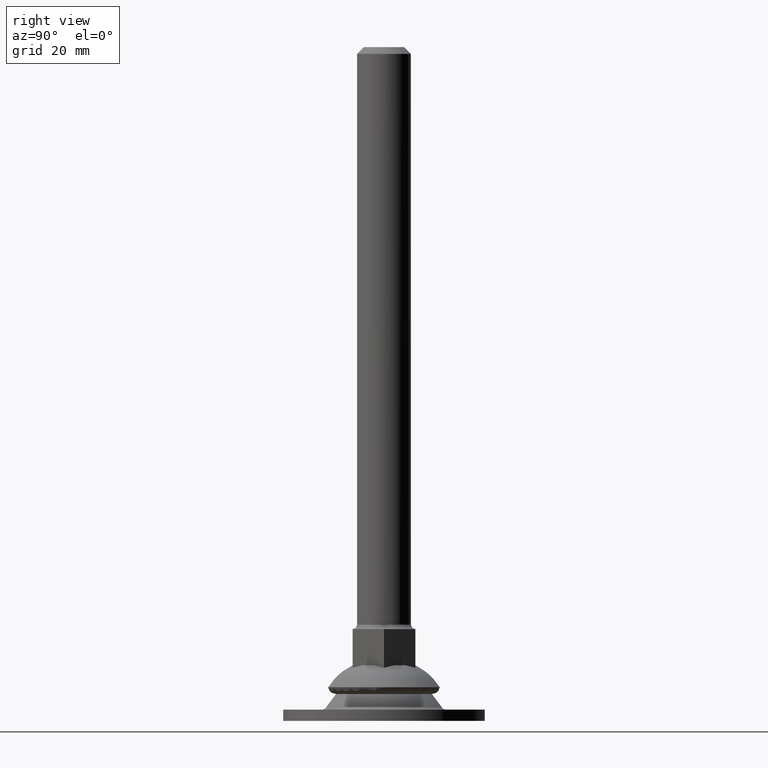
[diagram: clean part render]
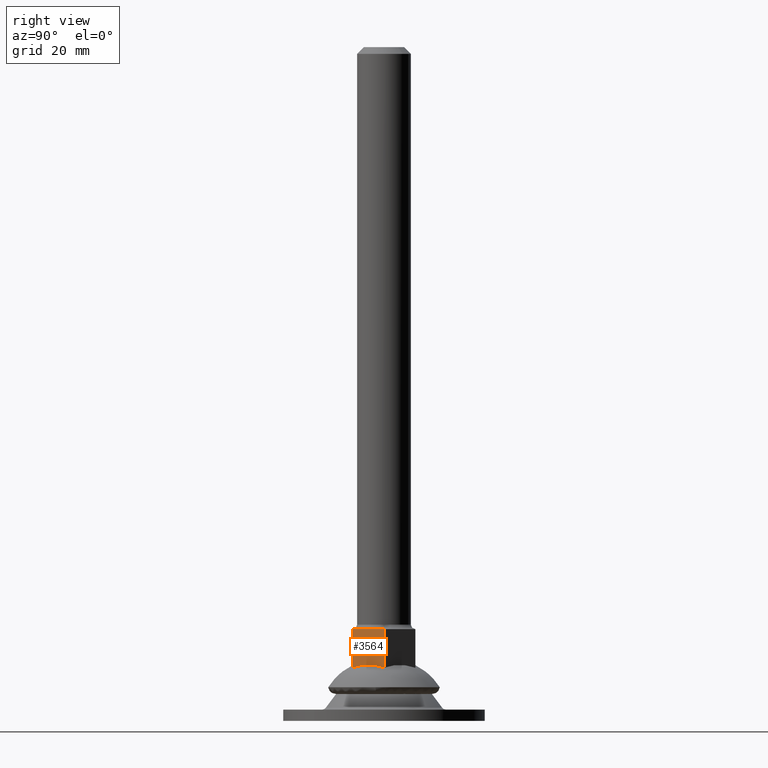
[diagram: same view with one face highlighted and labeled with its STEP entity id]
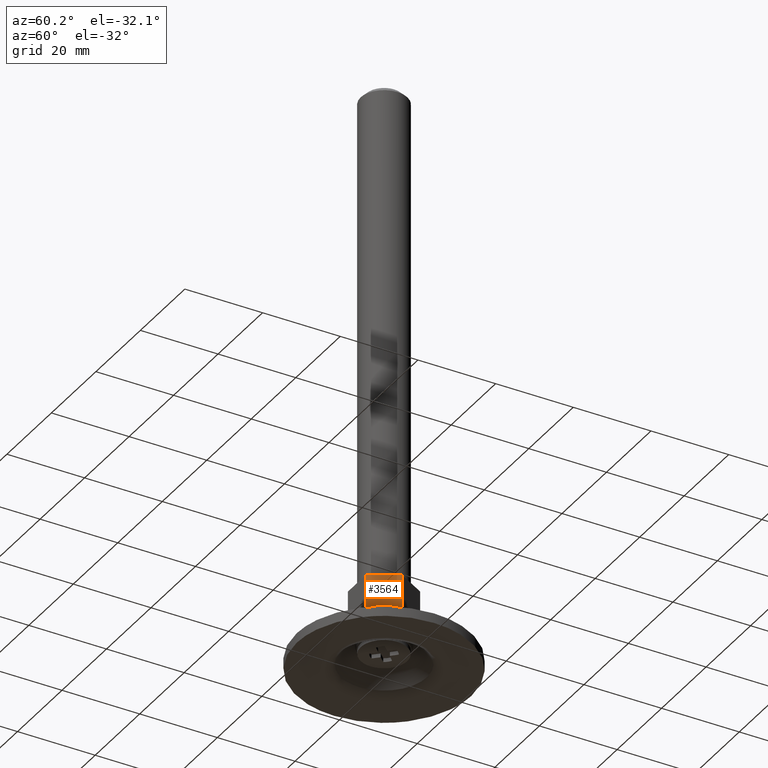
[diagram: same view with one face highlighted and labeled with its STEP entity id]
A machine part, right view. The second image highlights one B-rep face of the part: STEP entity #3564.
A second angle (auxiliary view) of the same face is appended — the face is thin or edge-on in the first view.
In plain terms, the highlighted face is a freeform B-spline surface patch.
Its self-contained STEP definition (entity closure, byte-faithful):
#3212=CARTESIAN_POINT('',(6.062177913245590,-3.500000150263090,20.500000000000000));
#3213=VERTEX_POINT('',#3212);
#3328=CARTESIAN_POINT('',(8.082904000000001,0.0,20.500000000000000));
#3329=VERTEX_POINT('',#3328);
#3337=CARTESIAN_POINT('',(8.082904000000001,0.0,20.500000000000000));
#3338=CARTESIAN_POINT('',(6.062177913245590,-3.500000150263090,20.500000000000000));
#3339=QUASI_UNIFORM_CURVE('',1,(#3337,#3338),.UNSPECIFIED.,.F.,.U.);
#3340=EDGE_CURVE('',#3329,#3213,#3339,.T.);
#3435=CARTESIAN_POINT('',(4.041452000000050,-7.0,20.500000000000000));
#3436=VERTEX_POINT('',#3435);
#3437=CARTESIAN_POINT('',(6.062177913245590,-3.500000150263090,20.500000000000000));
#3438=CARTESIAN_POINT('',(4.041452000000050,-7.0,20.500000000000000));
#3439=QUASI_UNIFORM_CURVE('',1,(#3437,#3438),.UNSPECIFIED.,.F.,.U.);
#3440=EDGE_CURVE('',#3213,#3436,#3439,.T.);
#3516=CARTESIAN_POINT('',(4.041452000000050,-7.0,11.867350484786179));
#3517=VERTEX_POINT('',#3516);
#3527=CARTESIAN_POINT('',(4.041452000000050,-7.0,11.867350484786179));
#3528=CARTESIAN_POINT('',(4.041452000000050,-7.0,20.500000000000000));
#3529=QUASI_UNIFORM_CURVE('',1,(#3527,#3528),.UNSPECIFIED.,.F.,.U.);
#3530=EDGE_CURVE('',#3517,#3436,#3529,.T.);
#3538=CARTESIAN_POINT('',(8.284774519566881,0.349649986432645,11.436149541296309));
#3539=CARTESIAN_POINT('',(3.839581372033022,-7.349650174187297,11.436149541296309));
#3540=CARTESIAN_POINT('',(8.284774519566881,0.349649986432645,20.931201063662002));
#3541=CARTESIAN_POINT('',(3.839581372033022,-7.349650174187297,20.931201063662002));
#3542=B_SPLINE_SURFACE_WITH_KNOTS('',1,1,((#3538,#3540),(#3539,#3541)),.UNSPECIFIED.,.F.,.F.,.U.,(2,2),(2,2),(0.0,8.890386104225406),(0.0,9.495051522365689),.UNSPECIFIED.);
#3543=CARTESIAN_POINT('',(8.082904000000001,4.336809E-016,11.867350373412600));
#3544=VERTEX_POINT('',#3543);
#3545=CARTESIAN_POINT('',(8.082904000000001,4.336809E-016,11.867350373412600));
#3546=CARTESIAN_POINT('',(7.695918158687956,-0.670279119777820,12.115820715223959));
#3547=CARTESIAN_POINT('',(6.877986629508403,-2.086978044881282,12.478747010405611));
#3548=CARTESIAN_POINT('',(5.503060618181916,-4.468419684986229,12.558909774698069));
#3549=CARTESIAN_POINT('',(4.550625719361336,-6.118085273429196,12.194437573459309));
#3550=CARTESIAN_POINT('',(4.041452000000050,-7.0,11.867350484786179));
#3551=B_SPLINE_CURVE_WITH_KNOTS('',3,(#3545,#3546,#3547,#3548,#3549,#3550),.UNSPECIFIED.,.F.,.U.,(4,1,1,4),(0.000000019349825,2.438636873985987,5.005612915558394,8.214342340113577),.UNSPECIFIED.);
#3552=EDGE_CURVE('',#3544,#3517,#3551,.T.);
#3553=ORIENTED_EDGE('',*,*,#3552,.F.);
#3554=CARTESIAN_POINT('',(8.082904000000001,4.336809E-016,11.867350373412600));
#3555=CARTESIAN_POINT('',(8.082904000000001,0.0,20.500000000000000));
#3556=QUASI_UNIFORM_CURVE('',1,(#3554,#3555),.UNSPECIFIED.,.F.,.U.);
#3557=EDGE_CURVE('',#3544,#3329,#3556,.T.);
#3558=ORIENTED_EDGE('',*,*,#3557,.T.);
#3559=ORIENTED_EDGE('',*,*,#3340,.T.);
#3560=ORIENTED_EDGE('',*,*,#3440,.T.);
#3561=ORIENTED_EDGE('',*,*,#3530,.F.);
#3562=EDGE_LOOP('',(#3553,#3558,#3559,#3560,#3561));
#3563=FACE_OUTER_BOUND('',#3562,.T.);
#3564=ADVANCED_FACE('',(#3563),#3542,.F.);